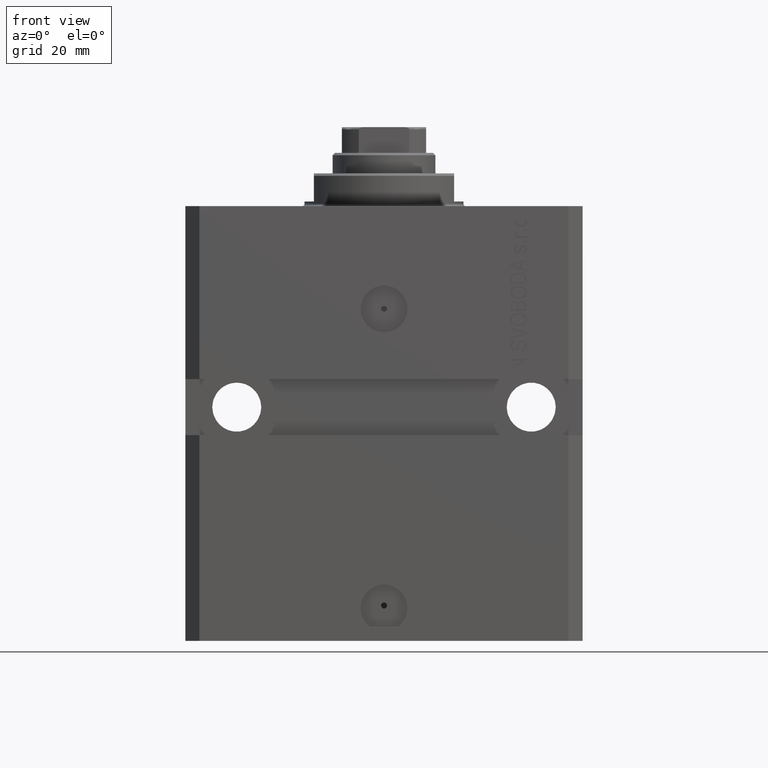
[diagram: clean part render]
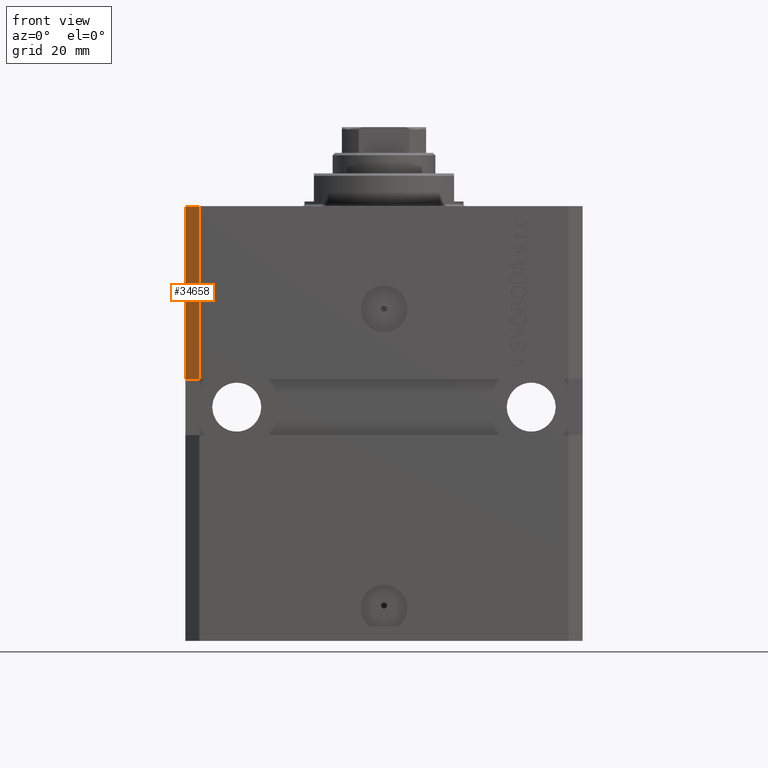
[diagram: same view with one face highlighted and labeled with its STEP entity id]
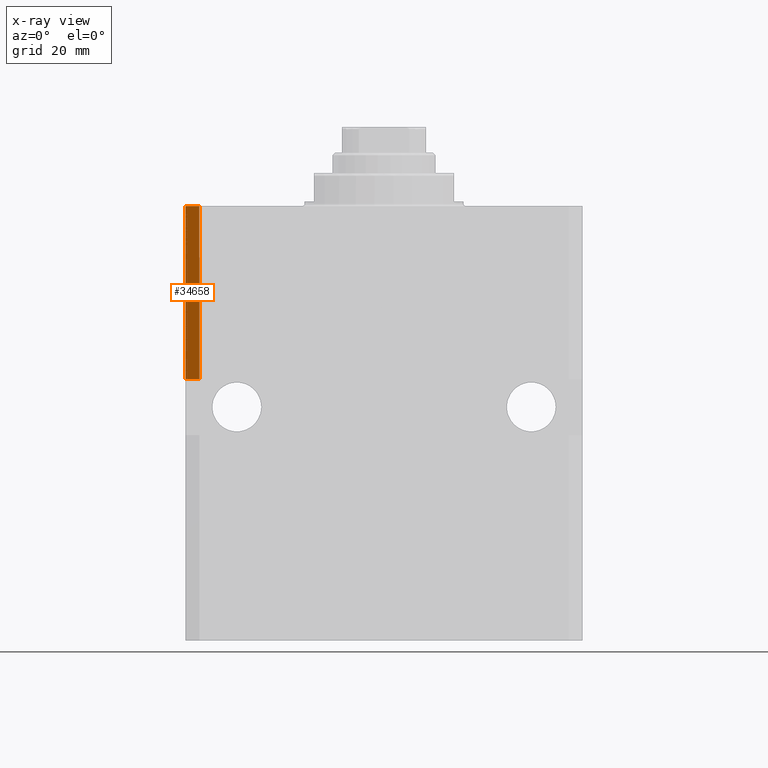
[diagram: x-ray of the same camera — body ghosted, the highlighted face saturated]
A machine part, front view. The second image highlights one B-rep face of the part: STEP entity #34658.
The next image is the same camera in x-ray: the body ghosted, the highlighted face saturated — about 0% of this face is hidden behind the body in this view.
In plain terms, the highlighted planar face has unit normal (-0.7071, -0.7071, 0).
Its self-contained STEP definition (entity closure, byte-faithful):
#482 = EDGE_CURVE ( 'NONE', #42934, #11168, #32060, .T. ) ;
#1366 = CARTESIAN_POINT ( 'NONE',  ( -42.50000000000000711, -28.49999999999999289, -37.00000000000000711 ) ) ;
#3284 = PLANE ( 'NONE',  #45791 ) ;
#4255 = DIRECTION ( 'NONE',  ( 0.000000000000000000, 0.000000000000000000, 1.000000000000000000 ) ) ;
#5852 = CARTESIAN_POINT ( 'NONE',  ( -42.50000000000000000, -28.50000000000000000, 0.000000000000000000 ) ) ;
#8242 = CARTESIAN_POINT ( 'NONE',  ( -39.50000000000000000, -31.50000000000000711, -37.00000000000000711 ) ) ;
#9563 = DIRECTION ( 'NONE',  ( 0.7071067811865471286, -0.7071067811865479058, 0.000000000000000000 ) ) ;
#9848 = ORIENTED_EDGE ( 'NONE', *, *, #26549, .T. ) ;
#9863 = VERTEX_POINT ( 'NONE', #24099 ) ;
#11168 = VERTEX_POINT ( 'NONE', #38471 ) ;
#11721 = LINE ( 'NONE', #30702, #47276 ) ;
#11936 = VECTOR ( 'NONE', #39400, 1000.000000000000000 ) ;
#14129 = LINE ( 'NONE', #47096, #11936 ) ;
#15810 = EDGE_LOOP ( 'NONE', ( #24357, #9848, #24052, #17852 ) ) ;
#15878 = EDGE_CURVE ( 'NONE', #40268, #9863, #34092, .T. ) ;
#17437 = VECTOR ( 'NONE', #24839, 1000.000000000000000 ) ;
#17852 = ORIENTED_EDGE ( 'NONE', *, *, #35531, .F. ) ;
#17961 = CARTESIAN_POINT ( 'NONE',  ( -42.50000000000000000, -28.50000000000000000, -93.00000000000000000 ) ) ;
#24052 = ORIENTED_EDGE ( 'NONE', *, *, #482, .F. ) ;
#24099 = CARTESIAN_POINT ( 'NONE',  ( -42.50000000000000000, -28.50000000000000711, -37.00000000000000711 ) ) ;
#24357 = ORIENTED_EDGE ( 'NONE', *, *, #15878, .F. ) ;
#24839 = DIRECTION ( 'NONE',  ( 0.7071067811865471286, -0.7071067811865479058, 0.000000000000000000 ) ) ;
#26549 = EDGE_CURVE ( 'NONE', #40268, #11168, #11721, .T. ) ;
#27798 = VECTOR ( 'NONE', #31440, 1000.000000000000000 ) ;
#30702 = CARTESIAN_POINT ( 'NONE',  ( -39.50000000000000711, -31.50000000000000000, -93.00000000000000000 ) ) ;
#31440 = DIRECTION ( 'NONE',  ( -0.7071067811865471286, 0.7071067811865479058, -1.731719623548279770E-16 ) ) ;
#32060 = LINE ( 'NONE', #5852, #17437 ) ;
#32635 = DIRECTION ( 'NONE',  ( -0.7071067811865479058, -0.7071067811865471286, 0.000000000000000000 ) ) ;
#34092 = LINE ( 'NONE', #1366, #27798 ) ;
#34658 = ADVANCED_FACE ( 'NONE', ( #43482 ), #3284, .T. ) ;
#35531 = EDGE_CURVE ( 'NONE', #9863, #42934, #14129, .T. ) ;
#38471 = CARTESIAN_POINT ( 'NONE',  ( -39.50000000000000711, -31.50000000000000000, 0.000000000000000000 ) ) ;
#39400 = DIRECTION ( 'NONE',  ( 0.000000000000000000, 0.000000000000000000, 1.000000000000000000 ) ) ;
#40268 = VERTEX_POINT ( 'NONE', #8242 ) ;
#42934 = VERTEX_POINT ( 'NONE', #43525 ) ;
#43482 = FACE_OUTER_BOUND ( 'NONE', #15810, .T. ) ;
#43525 = CARTESIAN_POINT ( 'NONE',  ( -42.50000000000000000, -28.50000000000000000, 0.000000000000000000 ) ) ;
#45791 = AXIS2_PLACEMENT_3D ( 'NONE', #17961, #32635, #9563 ) ;
#47096 = CARTESIAN_POINT ( 'NONE',  ( -42.50000000000000000, -28.50000000000000000, -93.00000000000000000 ) ) ;
#47276 = VECTOR ( 'NONE', #4255, 1000.000000000000000 ) ;